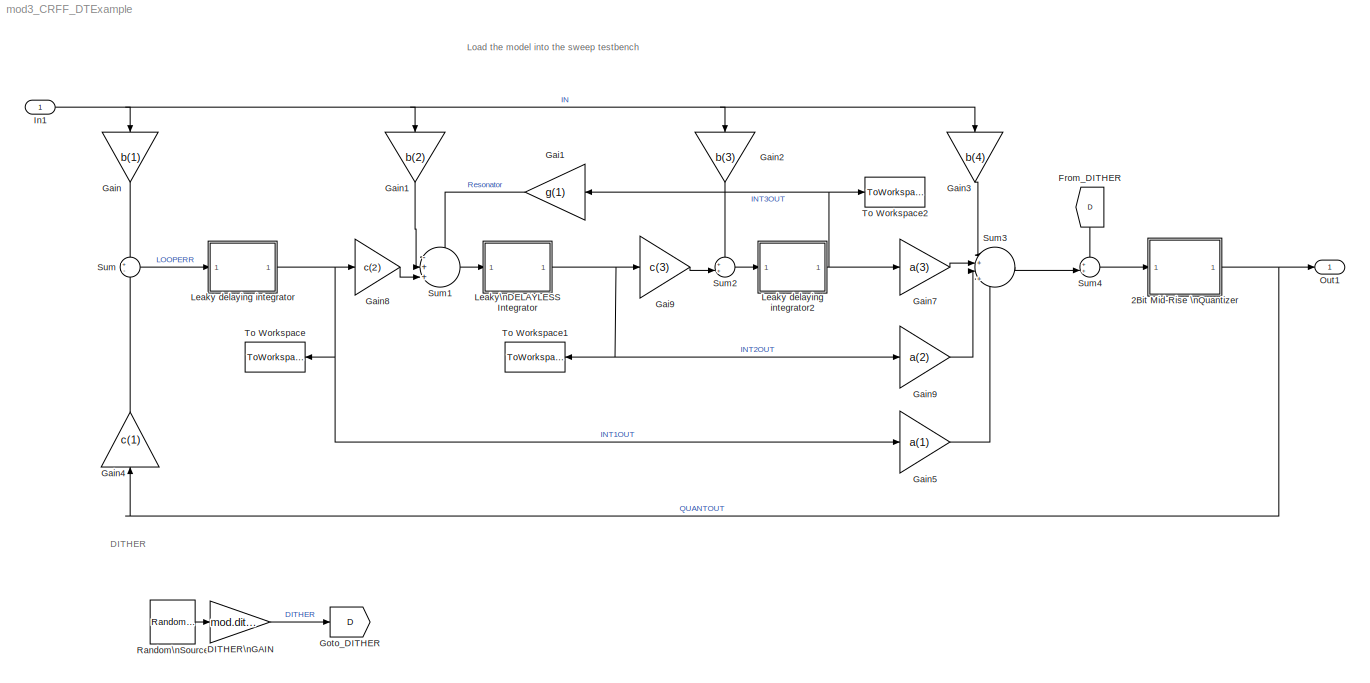
MODEL mod3_CRFF_DTExample
KIND model
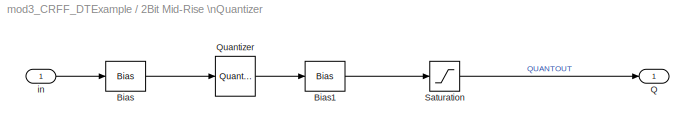
BLOCK [SubSystem] 2Bit Mid-Rise \nQuantizer
  Ports = [1, 1]
  RequestExecContextInheritance = off
  SID = 287
  Variant = off
BLOCK [Bias] 2Bit Mid-Rise \nQuantizer/Bias
  AttributesFormatString = Need offset to give\\nMID-RISE quantiser
  Bias = 1/3
  SID = 289
  SaturateOnIntegerOverflow = off
BLOCK [Bias] 2Bit Mid-Rise \nQuantizer/Bias1
  Bias = -1/3
  SID = 290
  SaturateOnIntegerOverflow = off
BLOCK [Outport] 2Bit Mid-Rise \nQuantizer/Q
  IconDisplay = Port number
  SID = 293
BLOCK [Quantizer] 2Bit Mid-Rise \nQuantizer/Quantizer
  LinearizeAsGain = off
  QuantizationInterval = 2/3
  SID = 291
  SampleTime = 1/Fs
BLOCK [Saturate] 2Bit Mid-Rise \nQuantizer/Saturation
  InputPortMap = u0
  LowerLimit = -(mod.qsatout1)
  Ports = [1, 1]
  SID = 292
  UpperLimit = mod.qsatout1
BLOCK [Inport] 2Bit Mid-Rise \nQuantizer/in
  IconDisplay = Port number
  SID = 288
BLOCK [Gain] DITHER\nGAIN
  Gain = mod.dither
  OutDataTypeStr = Inherit: Inherit via internal rule
  ParamDataTypeStr = Inherit: Inherit via internal rule
  SID = 243
  SaturateOnIntegerOverflow = off
BLOCK [From] From_DITHER
  GotoTag = D
  SID = 278
BLOCK [Gain] Gai1
  Gain = g(1)
  OutDataTypeStr = Inherit: Inherit via internal rule
  ParamDataTypeStr = Inherit: Inherit via internal rule
  SID = 132
  SaturateOnIntegerOverflow = off
BLOCK [Gain] Gai9
  Gain = c(3)
  OutDataTypeStr = Inherit: Inherit via internal rule
  ParamDataTypeStr = Inherit: Inherit via internal rule
  SID = 130
  SaturateOnIntegerOverflow = off
BLOCK [Gain] Gain
  Gain = b(1)
  OutDataTypeStr = Inherit: Inherit via internal rule
  ParamDataTypeStr = Inherit: Inherit via internal rule
  SID = 121
  SampleTime = 1/Fs
  SaturateOnIntegerOverflow = off
BLOCK [Gain] Gain1
  Gain = b(2)
  OutDataTypeStr = Inherit: Inherit via internal rule
  ParamDataTypeStr = Inherit: Inherit via internal rule
  SID = 122
  SampleTime = 1/Fs
  SaturateOnIntegerOverflow = off
BLOCK [Gain] Gain2
  Gain = b(3)
  OutDataTypeStr = Inherit: Inherit via internal rule
  ParamDataTypeStr = Inherit: Inherit via internal rule
  SID = 123
  SampleTime = 1/Fs
  SaturateOnIntegerOverflow = off
BLOCK [Gain] Gain3
  Gain = b(4)
  OutDataTypeStr = Inherit: Inherit via internal rule
  ParamDataTypeStr = Inherit: Inherit via internal rule
  SID = 124
  SampleTime = 1/Fs
  SaturateOnIntegerOverflow = off
BLOCK [Gain] Gain4
  Gain = c(1)
  OutDataTypeStr = Inherit: Inherit via internal rule
  ParamDataTypeStr = Inherit: Inherit via internal rule
  SID = 125
  SampleTime = 1/Fs
  SaturateOnIntegerOverflow = off
BLOCK [Gain] Gain5
  Gain = a(1)
  OutDataTypeStr = Inherit: Inherit via internal rule
  ParamDataTypeStr = Inherit: Inherit via internal rule
  SID = 238
  SaturateOnIntegerOverflow = off
BLOCK [Gain] Gain7
  Gain = a(3)
  OutDataTypeStr = Inherit: Inherit via internal rule
  ParamDataTypeStr = Inherit: Inherit via internal rule
  SID = 131
  SaturateOnIntegerOverflow = off
BLOCK [Gain] Gain8
  Gain = c(2)
  OutDataTypeStr = Inherit: Inherit via internal rule
  ParamDataTypeStr = Inherit: Inherit via internal rule
  SID = 129
  SaturateOnIntegerOverflow = off
BLOCK [Gain] Gain9
  Gain = a(2)
  OutDataTypeStr = Inherit: Inherit via internal rule
  ParamDataTypeStr = Inherit: Inherit via internal rule
  SID = 237
  SaturateOnIntegerOverflow = off
BLOCK [Goto] Goto_DITHER
  GotoTag = D
  SID = 244
BLOCK [Inport] In1
  IconDisplay = Port number
  SID = 73
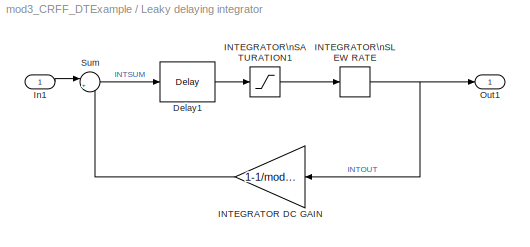
BLOCK [SubSystem] Leaky delaying integrator
  Ports = [1, 1]
  RequestExecContextInheritance = off
  SID = 254
  Variant = off
BLOCK [Delay] Leaky delaying integrator/Delay1
  DelayLength = 1
  InitialCondition = 0
  InputPortMap = u0
  InputProcessing = Inherited
  Ports = [1, 1]
  SID = 256
  UserData = DataTag1
  UserDataPersistent = on
BLOCK [Gain] Leaky delaying integrator/INTEGRATOR DC GAIN
  AttributesFormatString = Integrator leakage\\n(model finite integrator dc/LF\\ngain in analog modulators)
  Gain = 1-1/mod.igain1
  OutDataTypeStr = Inherit: Inherit via internal rule
  ParamDataTypeStr = Inherit: Inherit via internal rule
  SID = 259
  SaturateOnIntegerOverflow = off
BLOCK [Saturate] Leaky delaying integrator/INTEGRATOR\nSATURATION1
  InputPortMap = u0
  LowerLimit = -(mod.isat1)
  Ports = [1, 1]
  SID = 257
  UpperLimit = mod.isat1
BLOCK [RateLimiter] Leaky delaying integrator/INTEGRATOR\nSLEW RATE
  FallingSlewLimit = -(mod.isr1)
  RisingSlewLimit = mod.isr1
  SID = 258
  SampleTimeMode = inherited
BLOCK [Inport] Leaky delaying integrator/In1
  IconDisplay = Port number
  SID = 255
BLOCK [Outport] Leaky delaying integrator/Out1
  IconDisplay = Port number
  SID = 261
BLOCK [Sum] Leaky delaying integrator/Sum
  AttributesFormatString = Integrator summer
  IconShape = round
  InputSameDT = off
  Inputs = |++
  OutDataTypeStr = Inherit: Inherit via internal rule
  Ports = [2, 1]
  SID = 260
  SampleTime = 1/Fs
  SaturateOnIntegerOverflow = off
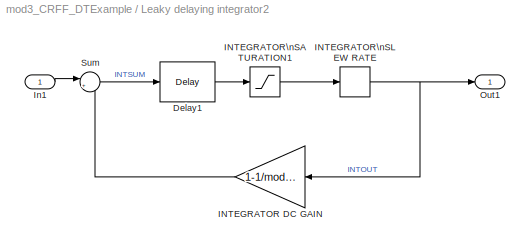
BLOCK [SubSystem] Leaky delaying integrator2
  Ports = [1, 1]
  RequestExecContextInheritance = off
  SID = 270
  Variant = off
BLOCK [Delay] Leaky delaying integrator2/Delay1
  DelayLength = 1
  InitialCondition = 0
  InputPortMap = u0
  InputProcessing = Inherited
  Ports = [1, 1]
  SID = 272
  UserData = DataTag2
  UserDataPersistent = on
BLOCK [Gain] Leaky delaying integrator2/INTEGRATOR DC GAIN
  AttributesFormatString = Integrator leakage\\n(model finite integrator dc/LF\\ngain in analog modulators)
  Gain = 1-1/mod.igain3
  OutDataTypeStr = Inherit: Inherit via internal rule
  ParamDataTypeStr = Inherit: Inherit via internal rule
  SID = 275
  SaturateOnIntegerOverflow = off
BLOCK [Saturate] Leaky delaying integrator2/INTEGRATOR\nSATURATION1
  InputPortMap = u0
  LowerLimit = -(mod.isat3)
  Ports = [1, 1]
  SID = 273
  UpperLimit = mod.isat3
BLOCK [RateLimiter] Leaky delaying integrator2/INTEGRATOR\nSLEW RATE
  FallingSlewLimit = -(mod.isr3)
  RisingSlewLimit = mod.isr3
  SID = 274
  SampleTimeMode = inherited
BLOCK [Inport] Leaky delaying integrator2/In1
  IconDisplay = Port number
  SID = 271
BLOCK [Outport] Leaky delaying integrator2/Out1
  IconDisplay = Port number
  SID = 277
BLOCK [Sum] Leaky delaying integrator2/Sum
  AttributesFormatString = Integrator summer
  IconShape = round
  InputSameDT = off
  Inputs = |++
  OutDataTypeStr = Inherit: Inherit via internal rule
  Ports = [2, 1]
  SID = 276
  SaturateOnIntegerOverflow = off
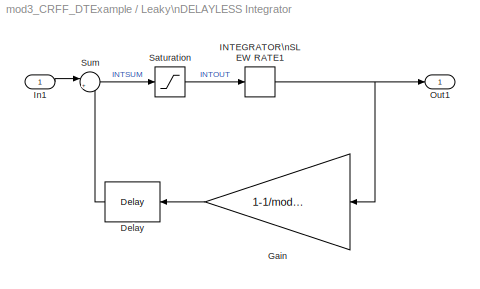
BLOCK [SubSystem] Leaky\nDELAYLESS Integrator
  Ports = [1, 1]
  RequestExecContextInheritance = off
  SID = 294
  Variant = off
BLOCK [Delay] Leaky\nDELAYLESS Integrator/Delay
  DelayLength = 1
  InitialCondition = 0
  InputPortMap = u0
  InputProcessing = Inherited
  Ports = [1, 1]
  SID = 296
  UserData = DataTag0
  UserDataPersistent = on
BLOCK [Gain] Leaky\nDELAYLESS Integrator/Gain
  AttributesFormatString = Integrator leakage
  Gain = 1-1/mod.igain2
  OutDataTypeStr = Inherit: Inherit via internal rule
  ParamDataTypeStr = Inherit: Inherit via internal rule
  SID = 297
  SaturateOnIntegerOverflow = off
BLOCK [RateLimiter] Leaky\nDELAYLESS Integrator/INTEGRATOR\nSLEW RATE1
  FallingSlewLimit = -(mod.isr2)
  RisingSlewLimit = mod.isr2
  SID = 302
  SampleTimeMode = inherited
BLOCK [Inport] Leaky\nDELAYLESS Integrator/In1
  IconDisplay = Port number
  SID = 295
BLOCK [Outport] Leaky\nDELAYLESS Integrator/Out1
  IconDisplay = Port number
  SID = 300
BLOCK [Saturate] Leaky\nDELAYLESS Integrator/Saturation
  InputPortMap = u0
  LowerLimit = -(mod.isat2)
  Ports = [1, 1]
  SID = 298
  UpperLimit = mod.isat2
BLOCK [Sum] Leaky\nDELAYLESS Integrator/Sum
  AttributesFormatString = Integrator summer
  IconShape = round
  InputSameDT = off
  Inputs = |++
  OutDataTypeStr = Inherit: Inherit via internal rule
  Ports = [2, 1]
  SID = 299
  SaturateOnIntegerOverflow = off
BLOCK [Outport] Out1
  IconDisplay = Port number
  SID = 74
BLOCK [Reference] Random\nSource  REF=dspsrcs4/Random\nSource
  CltLength = 12
  DataType = Double
  IsInherit = off
  MaxVal = 1
  MeanVal = 0
  MinVal = -1
  NormMethod = Ziggurat
  OutComplex = Real
  OutputFrames = on
  Ports = [0, 1]
  RepMode = Not repeatable
  SID = 245
  SampFrame = 1
  SampMode = Discrete
  SampTime = 1/Fs
  SourceBlock = dspsrcs4/Random\nSource
  SourceProductBaseCode = DS
  SourceProductName = DSP System Toolbox
  SourceType = Random Source
  SrcType = Uniform
  UserData = DataTag3
  UserDataPersistent = on
  VarVal = 1
  rawSeed = 1
BLOCK [Sum] Sum
  IconShape = round
  InputSameDT = off
  Inputs = +-
  OutDataTypeStr = Inherit: Inherit via internal rule
  Ports = [2, 1]
  SID = 115
  SampleTime = 1/Fs
  SaturateOnIntegerOverflow = off
BLOCK [Sum] Sum1
  IconShape = round
  InputSameDT = off
  Inputs = -++||
  OutDataTypeStr = Inherit: Inherit via internal rule
  Ports = [3, 1]
  SID = 116
  SaturateOnIntegerOverflow = off
BLOCK [Sum] Sum2
  IconShape = round
  InputSameDT = off
  Inputs = ++|
  OutDataTypeStr = Inherit: Inherit via internal rule
  Ports = [2, 1]
  SID = 117
  SaturateOnIntegerOverflow = off
BLOCK [Sum] Sum3
  IconShape = round
  InputSameDT = off
  Inputs = |+|+|++
  OutDataTypeStr = Inherit: Inherit via internal rule
  Ports = [4, 1]
  SID = 118
  SaturateOnIntegerOverflow = off
BLOCK [Sum] Sum4
  IconShape = round
  InputSameDT = off
  Inputs = ++|
  OutDataTypeStr = Inherit: Inherit via internal rule
  Ports = [2, 1]
  SID = 279
  SaturateOnIntegerOverflow = off
BLOCK [ToWorkspace] To Workspace
  MaxDataPoints = inf
  Ports = [1]
  SID = 239
  SampleTime = -1
  VariableName = INT1OUT
BLOCK [ToWorkspace] To Workspace1
  MaxDataPoints = inf
  Ports = [1]
  SID = 240
  SampleTime = -1
  VariableName = INT2OUT
BLOCK [ToWorkspace] To Workspace2
  MaxDataPoints = inf
  Ports = [1]
  SID = 241
  SampleTime = -1
  VariableName = INT3OUT
ANNOTATION (root): DITHER \n\n\n\n\n\n
ANNOTATION (root): Load the model into the sweep testbench
LINE 2Bit Mid-Rise \nQuantizer/Bias1:1 -> 2Bit Mid-Rise \nQuantizer/Saturation:1
LINE 2Bit Mid-Rise \nQuantizer/Bias:1 -> 2Bit Mid-Rise \nQuantizer/Quantizer:1
LINE 2Bit Mid-Rise \nQuantizer/Quantizer:1 -> 2Bit Mid-Rise \nQuantizer/Bias1:1
LINE 2Bit Mid-Rise \nQuantizer/Saturation:1 -> 2Bit Mid-Rise \nQuantizer/Q:1
LINE 2Bit Mid-Rise \nQuantizer/in:1 -> 2Bit Mid-Rise \nQuantizer/Bias:1
NET 2Bit Mid-Rise \nQuantizer:1 -> Gain4:1, Out1:1
LINE DITHER\nGAIN:1 -> Goto_DITHER:1
LINE From_DITHER:1 -> Sum4:1
LINE Gai1:1 -> Sum1:1
LINE Gai9:1 -> Sum2:2
LINE Gain1:1 -> Sum1:2
LINE Gain2:1 -> Sum2:1
LINE Gain3:1 -> Sum3:1
LINE Gain4:1 -> Sum:2
LINE Gain5:1 -> Sum3:4
LINE Gain7:1 -> Sum3:2
LINE Gain8:1 -> Sum1:3
LINE Gain9:1 -> Sum3:3
LINE Gain:1 -> Sum:1
NET In1:1 -> Gain1:1, Gain2:1, Gain3:1, Gain:1
LINE Leaky delaying integrator/Delay1:1 -> Leaky delaying integrator/INTEGRATOR\nSATURATION1:1
LINE Leaky delaying integrator/INTEGRATOR DC GAIN:1 -> Leaky delaying integrator/Sum:2
LINE Leaky delaying integrator/INTEGRATOR\nSATURATION1:1 -> Leaky delaying integrator/INTEGRATOR\nSLEW RATE:1
NET Leaky delaying integrator/INTEGRATOR\nSLEW RATE:1 -> Leaky delaying integrator/INTEGRATOR DC GAIN:1, Leaky delaying integrator/Out1:1
LINE Leaky delaying integrator/In1:1 -> Leaky delaying integrator/Sum:1
LINE Leaky delaying integrator/Sum:1 -> Leaky delaying integrator/Delay1:1
LINE Leaky delaying integrator2/Delay1:1 -> Leaky delaying integrator2/INTEGRATOR\nSATURATION1:1
LINE Leaky delaying integrator2/INTEGRATOR DC GAIN:1 -> Leaky delaying integrator2/Sum:2
LINE Leaky delaying integrator2/INTEGRATOR\nSATURATION1:1 -> Leaky delaying integrator2/INTEGRATOR\nSLEW RATE:1
NET Leaky delaying integrator2/INTEGRATOR\nSLEW RATE:1 -> Leaky delaying integrator2/INTEGRATOR DC GAIN:1, Leaky delaying integrator2/Out1:1
LINE Leaky delaying integrator2/In1:1 -> Leaky delaying integrator2/Sum:1
LINE Leaky delaying integrator2/Sum:1 -> Leaky delaying integrator2/Delay1:1
NET Leaky delaying integrator2:1 -> Gai1:1, Gain7:1, To Workspace2:1
NET Leaky delaying integrator:1 -> Gain5:1, Gain8:1, To Workspace:1
LINE Leaky\nDELAYLESS Integrator/Delay:1 -> Leaky\nDELAYLESS Integrator/Sum:2
LINE Leaky\nDELAYLESS Integrator/Gain:1 -> Leaky\nDELAYLESS Integrator/Delay:1
NET Leaky\nDELAYLESS Integrator/INTEGRATOR\nSLEW RATE1:1 -> Leaky\nDELAYLESS Integrator/Gain:1, Leaky\nDELAYLESS Integrator/Out1:1
LINE Leaky\nDELAYLESS Integrator/In1:1 -> Leaky\nDELAYLESS Integrator/Sum:1
LINE Leaky\nDELAYLESS Integrator/Saturation:1 -> Leaky\nDELAYLESS Integrator/INTEGRATOR\nSLEW RATE1:1
LINE Leaky\nDELAYLESS Integrator/Sum:1 -> Leaky\nDELAYLESS Integrator/Saturation:1
NET Leaky\nDELAYLESS Integrator:1 -> Gai9:1, Gain9:1, To Workspace1:1
LINE Random\nSource:1 -> DITHER\nGAIN:1
LINE Sum1:1 -> Leaky\nDELAYLESS Integrator:1
LINE Sum2:1 -> Leaky delaying integrator2:1
LINE Sum3:1 -> Sum4:2
LINE Sum4:1 -> 2Bit Mid-Rise \nQuantizer:1
LINE Sum:1 -> Leaky delaying integrator:1
note: NET lines group one-source signal fan-out (src -> all destinations, sorted); 1:1 wires keep LINE
